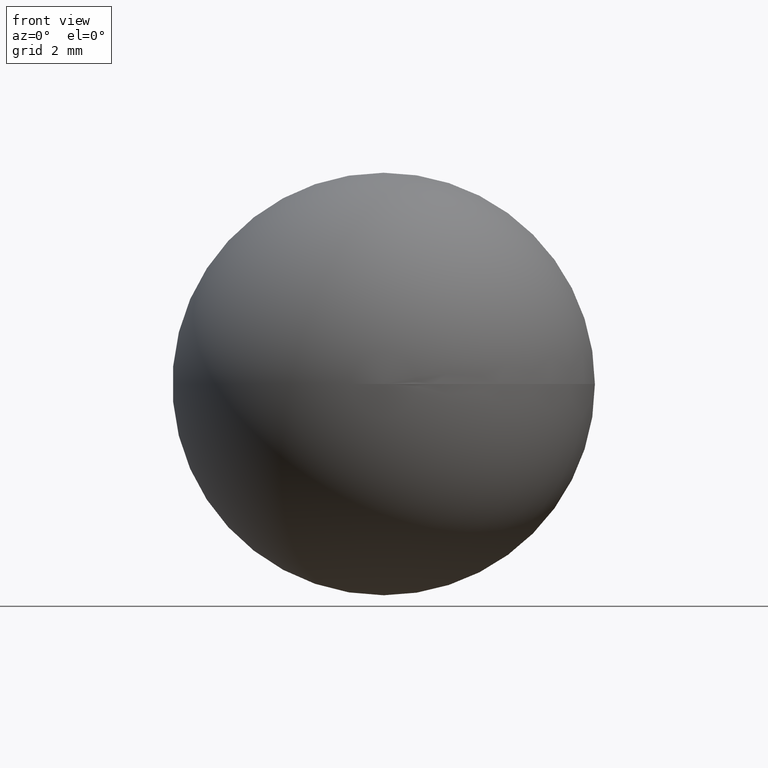
[diagram: clean part render]
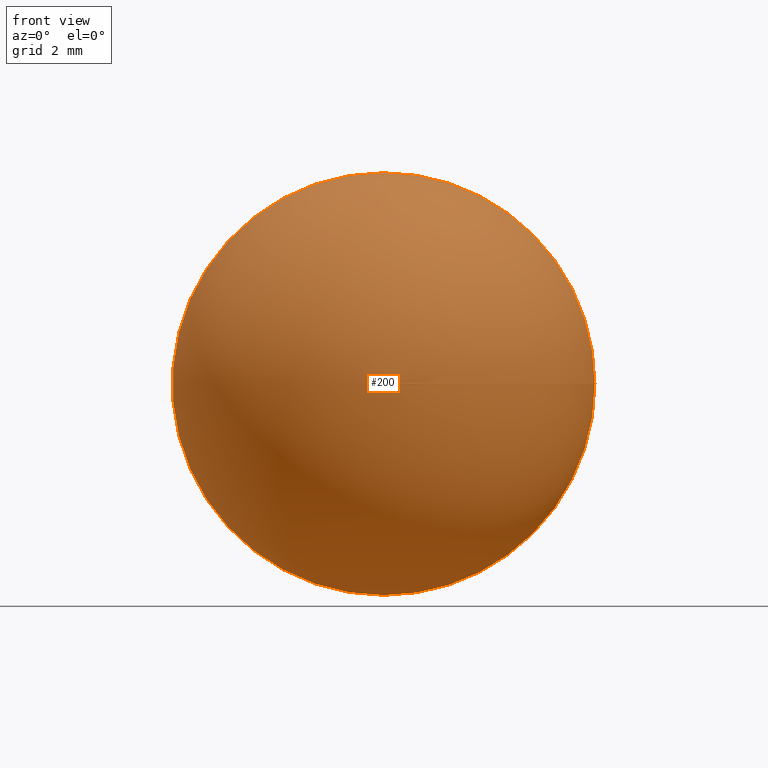
[diagram: same view with one face highlighted and labeled with its STEP entity id]
A machine part, front view. The second image highlights one B-rep face of the part: STEP entity #200.
In plain terms, the highlighted spherical surface has radius 4 mm.
Its self-contained STEP definition (entity closure, byte-faithful):
#6 = CARTESIAN_POINT ( 'NONE',  ( 0.0000000000000000000, 0.0000000000000000000, 0.0000000000000000000 ) ) ;
#16 = DIRECTION ( 'NONE',  ( 1.224646799147353200E-016, -1.000000000000000000, 0.0000000000000000000 ) ) ;
#17 = CIRCLE ( 'NONE', #74, 4.000000000000000000 ) ;
#27 = VERTEX_POINT ( 'NONE', #117 ) ;
#28 = EDGE_CURVE ( 'NONE', #27, #122, #69, .T. ) ;
#43 = DIRECTION ( 'NONE',  ( 1.000000000000000000, 0.0000000000000000000, 0.0000000000000000000 ) ) ;
#46 = ORIENTED_EDGE ( 'NONE', *, *, #28, .T. ) ;
#47 = EDGE_CURVE ( 'NONE', #27, #122, #17, .T. ) ;
#66 = CARTESIAN_POINT ( 'NONE',  ( 0.0000000000000000000, 0.0000000000000000000, 0.0000000000000000000 ) ) ;
#69 = CIRCLE ( 'NONE', #177, 4.000000000000000000 ) ;
#74 = AXIS2_PLACEMENT_3D ( 'NONE', #66, #199, #195 ) ;
#82 = SPHERICAL_SURFACE ( 'NONE', #169, 4.000000000000000000 ) ;
#103 = CARTESIAN_POINT ( 'NONE',  ( 2.449293598294706400E-016, 0.0000000000000000000, -4.000000000000000000 ) ) ;
#117 = CARTESIAN_POINT ( 'NONE',  ( 2.449293598294706400E-016, 0.0000000000000000000, 4.000000000000000000 ) ) ;
#119 = DIRECTION ( 'NONE',  ( 0.0000000000000000000, -1.000000000000000000, -0.0000000000000000000 ) ) ;
#122 = VERTEX_POINT ( 'NONE', #103 ) ;
#133 = CARTESIAN_POINT ( 'NONE',  ( 0.0000000000000000000, 0.0000000000000000000, 0.0000000000000000000 ) ) ;
#169 = AXIS2_PLACEMENT_3D ( 'NONE', #6, #119, #43 ) ;
#177 = AXIS2_PLACEMENT_3D ( 'NONE', #133, #16, #182 ) ;
#182 = DIRECTION ( 'NONE',  ( 1.000000000000000000, 1.224646799147353200E-016, 0.0000000000000000000 ) ) ;
#184 = EDGE_LOOP ( 'NONE', ( #185, #46 ) ) ;
#185 = ORIENTED_EDGE ( 'NONE', *, *, #47, .F. ) ;
#190 = FACE_OUTER_BOUND ( 'NONE', #184, .T. ) ;
#195 = DIRECTION ( 'NONE',  ( 0.0000000000000000000, 0.0000000000000000000, 1.000000000000000000 ) ) ;
#199 = DIRECTION ( 'NONE',  ( 0.0000000000000000000, 1.000000000000000000, -0.0000000000000000000 ) ) ;
#200 = ADVANCED_FACE ( 'NONE', ( #190 ), #82, .T. ) ;